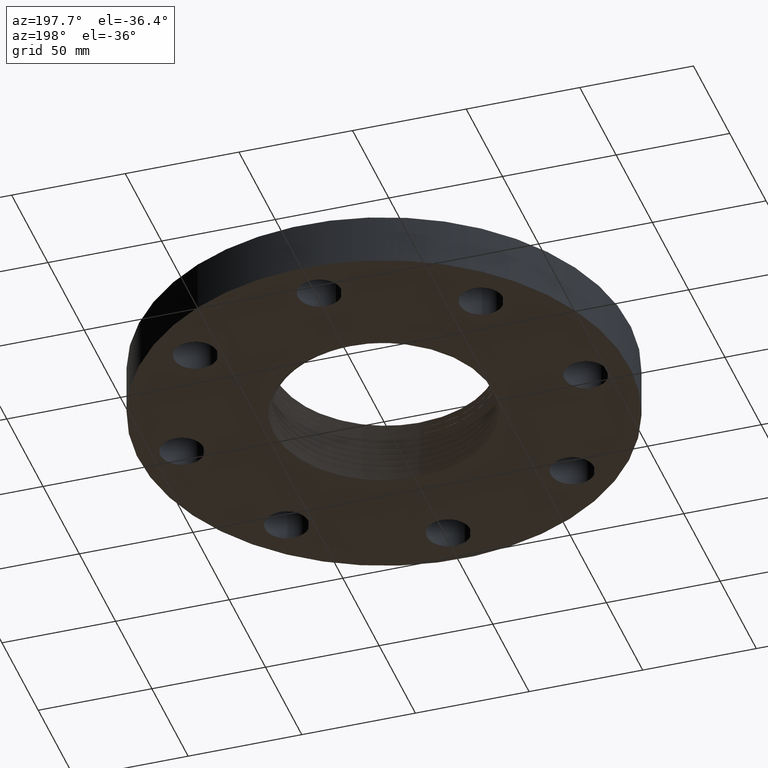
[diagram: clean part render]
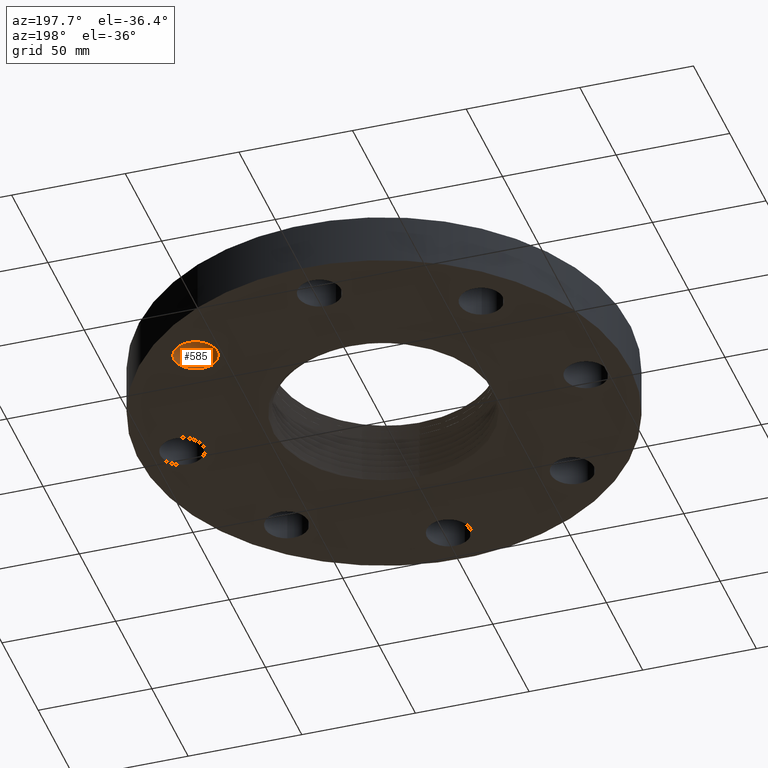
[diagram: same view with one face highlighted and labeled with its STEP entity id]
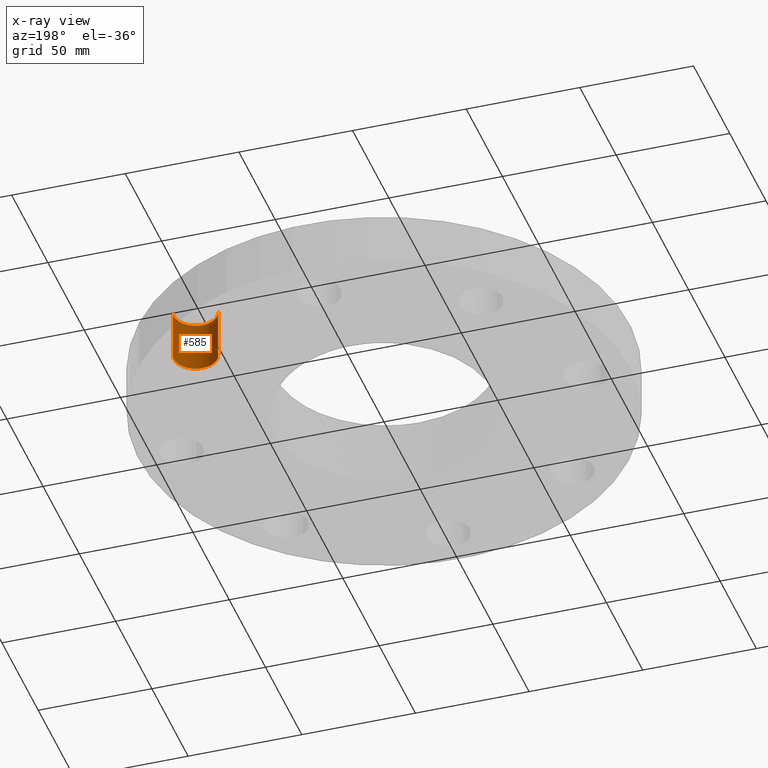
[diagram: x-ray of the same camera — body ghosted, the highlighted face saturated]
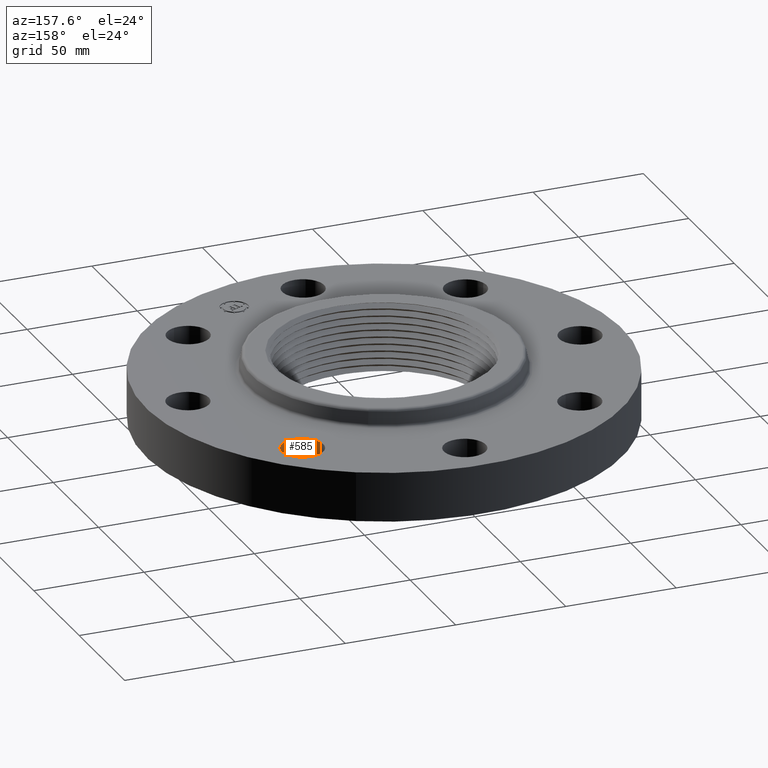
[diagram: same view with one face highlighted and labeled with its STEP entity id]
A machine part, auxiliary view. The second image highlights one B-rep face of the part: STEP entity #585.
The next image is the same camera in x-ray: the body ghosted, the highlighted face saturated — about 9% of this face is hidden behind the body in this view.
A second angle (auxiliary view) of the same face is appended — the face is thin or edge-on in the first view.
In plain terms, the highlighted cylindrical surface (edge-blend (fillet) strip) has radius 9.525 mm, axis along (0, 0, -1).
Its self-contained STEP definition (entity closure, byte-faithful):
#319=AXIS2_PLACEMENT_3D('Circle Axis2P3D',#317,#318,$) ;
#558=AXIS2_PLACEMENT_3D('Cylinder Axis2P3D',#555,#556,#557) ;
#576=AXIS2_PLACEMENT_3D('Circle Axis2P3D',#574,#575,$) ;
#312=CARTESIAN_POINT('Vertex',(2.11504262292,2.36929640998,0.)) ;
#314=CARTESIAN_POINT('Vertex',(2.83470484541,2.58045105834,0.)) ;
#317=CARTESIAN_POINT('Axis2P3D Location',(2.47487373416,2.47487373416,0.)) ;
#555=CARTESIAN_POINT('Axis2P3D Location',(2.47487373416,2.47487373416,0.87606299213)) ;
#560=CARTESIAN_POINT('Line Origine',(2.83470484541,2.58045105834,0.440000000002)) ;
#564=CARTESIAN_POINT('Vertex',(2.83470484541,2.58045105834,0.880000000004)) ;
#567=CARTESIAN_POINT('Line Origine',(2.11504262292,2.36929640998,0.440000000002)) ;
#571=CARTESIAN_POINT('Vertex',(2.11504262292,2.36929640998,0.880000000004)) ;
#574=CARTESIAN_POINT('Axis2P3D Location',(2.47487373416,2.47487373416,0.880000000004)) ;
#318=DIRECTION('Axis2P3D Direction',(0.,0.,-0.0393700787402)) ;
#556=DIRECTION('Axis2P3D Direction',(0.,0.,-0.0393700787402)) ;
#557=DIRECTION('Axis2P3D XDirection',(-0.0377775444876,-0.0110842335096,-0.)) ;
#561=DIRECTION('Vector Direction',(0.,0.,-0.0393700787402)) ;
#568=DIRECTION('Vector Direction',(0.,0.,-0.0393700787402)) ;
#575=DIRECTION('Axis2P3D Direction',(0.,0.,-0.0393700787402)) ;
#562=VECTOR('Line Direction',#561,0.0393700787402) ;
#569=VECTOR('Line Direction',#568,0.0393700787402) ;
#580=ORIENTED_EDGE('',*,*,#566,.F.) ;
#581=ORIENTED_EDGE('',*,*,#321,.T.) ;
#582=ORIENTED_EDGE('',*,*,#573,.T.) ;
#583=ORIENTED_EDGE('',*,*,#578,.F.) ;
#585=ADVANCED_FACE('PartBody',(#584),#559,.F.) ;
#320=CIRCLE('generated circle',#319,0.375000000002) ;
#577=CIRCLE('generated circle',#576,0.375000000002) ;
#559=CYLINDRICAL_SURFACE('generated cylinder',#558,0.375000000002) ;
#321=EDGE_CURVE('',#315,#313,#320,.T.) ;
#566=EDGE_CURVE('',#315,#565,#563,.F.) ;
#573=EDGE_CURVE('',#313,#572,#570,.F.) ;
#578=EDGE_CURVE('',#565,#572,#577,.T.) ;
#579=EDGE_LOOP('',(#580,#581,#582,#583)) ;
#584=FACE_OUTER_BOUND('',#579,.T.) ;
#563=LINE('Line',#560,#562) ;
#570=LINE('Line',#567,#569) ;
#313=VERTEX_POINT('',#312) ;
#315=VERTEX_POINT('',#314) ;
#565=VERTEX_POINT('',#564) ;
#572=VERTEX_POINT('',#571) ;